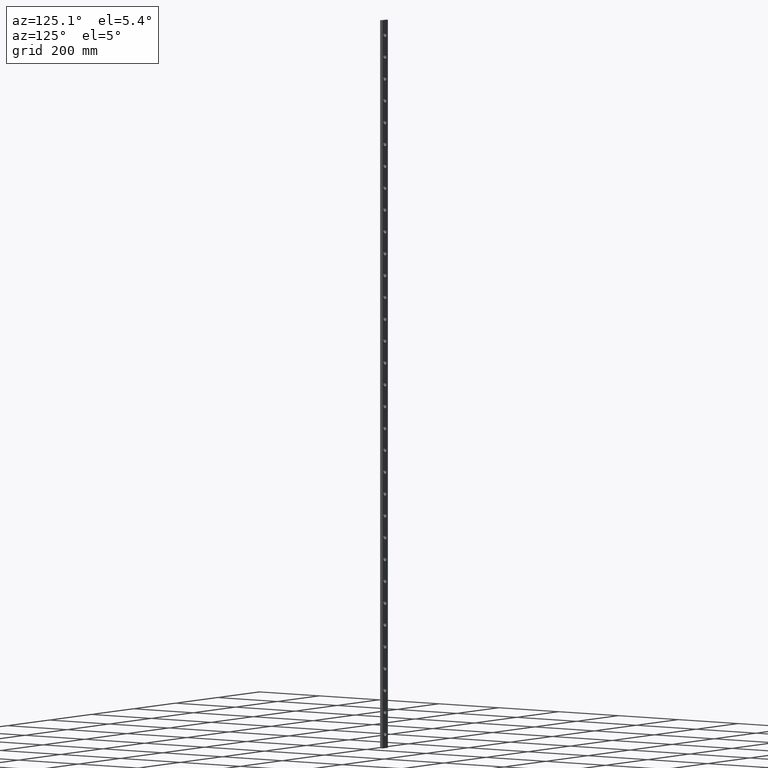
[diagram: clean part render]
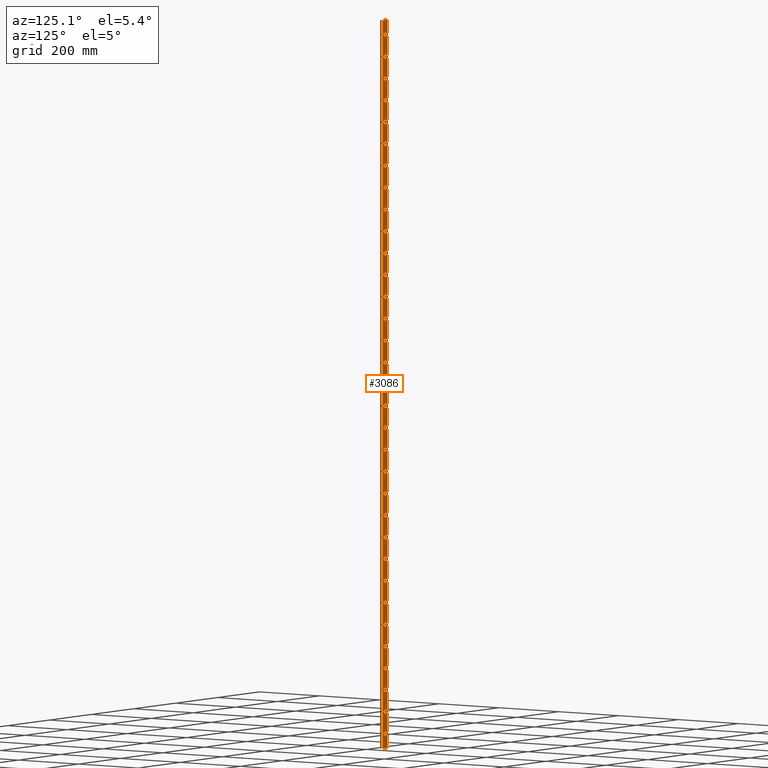
[diagram: same view with one face highlighted and labeled with its STEP entity id]
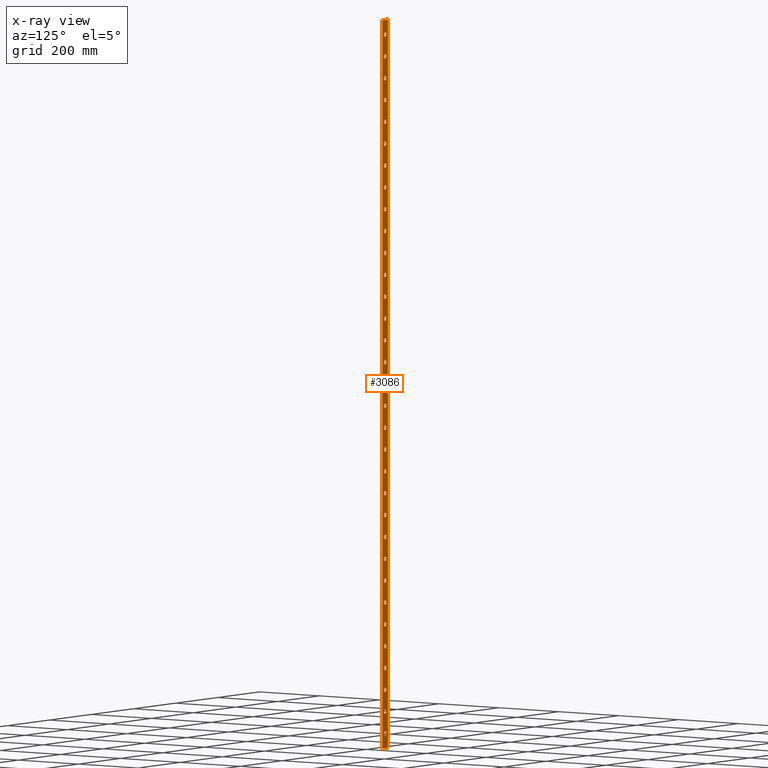
[diagram: x-ray of the same camera — body ghosted, the highlighted face saturated]
A machine part, auxiliary view. The second image highlights one B-rep face of the part: STEP entity #3086.
The next image is the same camera in x-ray: the body ghosted, the highlighted face saturated — about 0% of this face is hidden behind the body in this view.
In plain terms, the highlighted planar face has unit normal (-0, 1, 0).
Its self-contained STEP definition (entity closure, byte-faithful):
#38 = AXIS2_PLACEMENT_3D ( 'NONE', #934, #4099, #1985 ) ;
#85 = ORIENTED_EDGE ( 'NONE', *, *, #7486, .F. ) ;
#91 = CIRCLE ( 'NONE', #7101, 6.499999999999839240 ) ;
#181 = CARTESIAN_POINT ( 'NONE',  ( 0.000000000000000000, 4.000000000000000000, -533.4999999999998863 ) ) ;
#225 = EDGE_LOOP ( 'NONE', ( #13113 ) ) ;
#255 = CARTESIAN_POINT ( 'NONE',  ( 0.000000000000000000, 4.000000000000000000, -959.9999999999997726 ) ) ;
#257 = EDGE_LOOP ( 'NONE', ( #11710 ) ) ;
#326 = CARTESIAN_POINT ( 'NONE',  ( 0.000000000000000000, 4.000000000000000000, 726.5000000000002274 ) ) ;
#340 = FACE_BOUND ( 'NONE', #225, .T. ) ;
#350 = DIRECTION ( 'NONE',  ( 0.000000000000000000, 0.000000000000000000, 1.000000000000000000 ) ) ;
#354 = CIRCLE ( 'NONE', #9253, 6.500000000000061284 ) ;
#378 = CARTESIAN_POINT ( 'NONE',  ( 0.000000000000000000, 4.000000000000000000, 6.500000000000107470 ) ) ;
#425 = CARTESIAN_POINT ( 'NONE',  ( 0.000000000000000000, 4.000000000000000000, 66.50000000000042633 ) ) ;
#440 = DIRECTION ( 'NONE',  ( 0.000000000000000000, 0.000000000000000000, 1.000000000000000000 ) ) ;
#502 = CARTESIAN_POINT ( 'NONE',  ( 0.000000000000000000, 4.000000000000000000, -599.9999999999998863 ) ) ;
#521 = FACE_BOUND ( 'NONE', #8348, .T. ) ;
#524 = EDGE_CURVE ( 'NONE', #6384, #6384, #4443, .T. ) ;
#610 = CIRCLE ( 'NONE', #8215, 6.499999999999895195 ) ;
#612 = VERTEX_POINT ( 'NONE', #378 ) ;
#627 = CIRCLE ( 'NONE', #6201, 6.499999999999895195 ) ;
#649 = DIRECTION ( 'NONE',  ( 0.000000000000000000, 1.000000000000000000, 0.000000000000000000 ) ) ;
#703 = DIRECTION ( 'NONE',  ( 0.000000000000000000, 1.000000000000000000, 0.000000000000000000 ) ) ;
#738 = EDGE_CURVE ( 'NONE', #4859, #4859, #13724, .T. ) ;
#870 = FACE_BOUND ( 'NONE', #3345, .T. ) ;
#934 = CARTESIAN_POINT ( 'NONE',  ( 0.000000000000000000, 4.000000000000000000, -179.9999999999997158 ) ) ;
#942 = VERTEX_POINT ( 'NONE', #6702 ) ;
#966 = ORIENTED_EDGE ( 'NONE', *, *, #13802, .F. ) ;
#978 = DIRECTION ( 'NONE',  ( 0.000000000000000000, 1.000000000000000000, 0.000000000000000000 ) ) ;
#1024 = FACE_BOUND ( 'NONE', #14113, .T. ) ;
#1099 = EDGE_LOOP ( 'NONE', ( #12954 ) ) ;
#1100 = DIRECTION ( 'NONE',  ( 0.000000000000000000, 1.000000000000000000, 0.000000000000000000 ) ) ;
#1106 = VERTEX_POINT ( 'NONE', #3851 ) ;
#1115 = DIRECTION ( 'NONE',  ( 0.000000000000000000, 1.000000000000000000, 0.000000000000000000 ) ) ;
#1138 = CARTESIAN_POINT ( 'NONE',  ( -12.50000000000006750, 4.000000000000000000, 1000.000000000000227 ) ) ;
#1143 = ORIENTED_EDGE ( 'NONE', *, *, #2172, .F. ) ;
#1149 = DIRECTION ( 'NONE',  ( 0.000000000000000000, 1.000000000000000000, 0.000000000000000000 ) ) ;
#1166 = DIRECTION ( 'NONE',  ( 0.000000000000000000, 1.000000000000000000, 0.000000000000000000 ) ) ;
#1184 = FACE_BOUND ( 'NONE', #1099, .T. ) ;
#1201 = CARTESIAN_POINT ( 'NONE',  ( 0.000000000000000000, 4.000000000000000000, -479.9999999999997726 ) ) ;
#1219 = EDGE_CURVE ( 'NONE', #6054, #6054, #9888, .T. ) ;
#1229 = CARTESIAN_POINT ( 'NONE',  ( 0.000000000000000000, 4.000000000000000000, 240.0000000000002274 ) ) ;
#1255 = CARTESIAN_POINT ( 'NONE',  ( 0.000000000000000000, 4.000000000000000000, 720.0000000000002274 ) ) ;
#1261 = VERTEX_POINT ( 'NONE', #13556 ) ;
#1343 = CARTESIAN_POINT ( 'NONE',  ( 0.000000000000000000, 4.000000000000000000, 660.0000000000001137 ) ) ;
#1389 = CARTESIAN_POINT ( 'NONE',  ( 0.000000000000000000, 4.000000000000000000, -419.9999999999997158 ) ) ;
#1454 = EDGE_CURVE ( 'NONE', #10954, #10954, #2080, .T. ) ;
#1455 = VERTEX_POINT ( 'NONE', #9959 ) ;
#1494 = ORIENTED_EDGE ( 'NONE', *, *, #11256, .F. ) ;
#1508 = AXIS2_PLACEMENT_3D ( 'NONE', #13974, #4282, #11206 ) ;
#1562 = LINE ( 'NONE', #7727, #9710 ) ;
#1592 = CARTESIAN_POINT ( 'NONE',  ( 0.000000000000000000, 4.000000000000000000, -719.9999999999997726 ) ) ;
#1595 = EDGE_CURVE ( 'NONE', #6448, #13109, #7204, .T. ) ;
#1608 = DIRECTION ( 'NONE',  ( 0.000000000000000000, 1.000000000000000000, 0.000000000000000000 ) ) ;
#1626 = CARTESIAN_POINT ( 'NONE',  ( 0.000000000000000000, 4.000000000000000000, 366.5000000000003979 ) ) ;
#1658 = CIRCLE ( 'NONE', #12400, 6.499999999999895195 ) ;
#1733 = CIRCLE ( 'NONE', #5662, 6.499999999999950262 ) ;
#1868 = DIRECTION ( 'NONE',  ( 0.000000000000000000, 0.000000000000000000, 1.000000000000000000 ) ) ;
#1885 = CARTESIAN_POINT ( 'NONE',  ( 0.000000000000000000, 4.000000000000000000, 480.0000000000002274 ) ) ;
#1894 = EDGE_CURVE ( 'NONE', #942, #942, #10409, .T. ) ;
#1920 = EDGE_LOOP ( 'NONE', ( #13104 ) ) ;
#1979 = ORIENTED_EDGE ( 'NONE', *, *, #1595, .T. ) ;
#1985 = DIRECTION ( 'NONE',  ( 0.000000000000000000, 0.000000000000000000, 1.000000000000000000 ) ) ;
#2000 = EDGE_LOOP ( 'NONE', ( #2219 ) ) ;
#2020 = VERTEX_POINT ( 'NONE', #6023 ) ;
#2080 = CIRCLE ( 'NONE', #6566, 6.500000000000061284 ) ;
#2098 = EDGE_CURVE ( 'NONE', #7272, #7272, #2599, .T. ) ;
#2119 = ORIENTED_EDGE ( 'NONE', *, *, #11844, .F. ) ;
#2154 = CARTESIAN_POINT ( 'NONE',  ( -12.50000000000006750, 4.000000000000000000, 1000.000000000000227 ) ) ;
#2172 = EDGE_CURVE ( 'NONE', #12890, #12890, #12303, .T. ) ;
#2219 = ORIENTED_EDGE ( 'NONE', *, *, #12562, .F. ) ;
#2235 = AXIS2_PLACEMENT_3D ( 'NONE', #3801, #11440, #3707 ) ;
#2270 = ORIENTED_EDGE ( 'NONE', *, *, #10347, .F. ) ;
#2276 = EDGE_CURVE ( 'NONE', #13067, #6448, #1562, .T. ) ;
#2282 = DIRECTION ( 'NONE',  ( 0.000000000000000000, 0.000000000000000000, 1.000000000000000000 ) ) ;
#2290 = VERTEX_POINT ( 'NONE', #11436 ) ;
#2336 = AXIS2_PLACEMENT_3D ( 'NONE', #5752, #13515, #440 ) ;
#2349 = EDGE_LOOP ( 'NONE', ( #12436 ) ) ;
#2367 = DIRECTION ( 'NONE',  ( 0.000000000000000000, 1.000000000000000000, 0.000000000000000000 ) ) ;
#2466 = DIRECTION ( 'NONE',  ( 0.000000000000000000, 0.000000000000000000, 1.000000000000000000 ) ) ;
#2469 = VERTEX_POINT ( 'NONE', #8256 ) ;
#2500 = DIRECTION ( 'NONE',  ( 0.000000000000000000, 1.000000000000000000, 0.000000000000000000 ) ) ;
#2517 = EDGE_LOOP ( 'NONE', ( #2270 ) ) ;
#2575 = EDGE_LOOP ( 'NONE', ( #4084 ) ) ;
#2579 = FACE_BOUND ( 'NONE', #5027, .T. ) ;
#2597 = DIRECTION ( 'NONE',  ( 0.000000000000000000, 1.000000000000000000, 0.000000000000000000 ) ) ;
#2599 = CIRCLE ( 'NONE', #11636, 6.500000000000061284 ) ;
#2671 = VERTEX_POINT ( 'NONE', #12340 ) ;
#2672 = EDGE_LOOP ( 'NONE', ( #1494 ) ) ;
#2690 = CARTESIAN_POINT ( 'NONE',  ( 0.000000000000000000, 4.000000000000000000, -713.5000000000000000 ) ) ;
#2699 = DIRECTION ( 'NONE',  ( 0.000000000000000000, 1.000000000000000000, 0.000000000000000000 ) ) ;
#2739 = CARTESIAN_POINT ( 'NONE',  ( 0.000000000000000000, 4.000000000000000000, -953.4999999999997726 ) ) ;
#2759 = CARTESIAN_POINT ( 'NONE',  ( 0.000000000000000000, 4.000000000000000000, -659.9999999999996589 ) ) ;
#2779 = CIRCLE ( 'NONE', #10147, 6.499999999999895195 ) ;
#2785 = CARTESIAN_POINT ( 'NONE',  ( 0.000000000000000000, 4.000000000000000000, 426.5000000000000000 ) ) ;
#2803 = ORIENTED_EDGE ( 'NONE', *, *, #738, .F. ) ;
#2819 = AXIS2_PLACEMENT_3D ( 'NONE', #2759, #703, #8229 ) ;
#2922 = FACE_BOUND ( 'NONE', #257, .T. ) ;
#2992 = VERTEX_POINT ( 'NONE', #13508 ) ;
#3026 = DIRECTION ( 'NONE',  ( -0.000000000000000000, 1.000000000000000000, 0.000000000000000000 ) ) ;
#3034 = CARTESIAN_POINT ( 'NONE',  ( 0.000000000000000000, 4.000000000000000000, 840.0000000000002274 ) ) ;
#3076 = ORIENTED_EDGE ( 'NONE', *, *, #10890, .F. ) ;
#3086 = ADVANCED_FACE ( 'NONE', ( #5423, #9192, #9013, #1024, #7507, #6151, #13133, #7354, #3378, #8025, #3566, #12283, #2922, #9371, #2579, #3743, #6305, #870, #4577, #13853, #12660, #4398, #6480, #6992, #3224, #10879, #340, #7182, #1184, #521, #5106, #12463, #9524, #4763 ), #12852, .T. ) ;
#3194 = DIRECTION ( 'NONE',  ( 0.000000000000000000, 1.000000000000000000, 0.000000000000000000 ) ) ;
#3211 = EDGE_CURVE ( 'NONE', #2671, #2671, #1733, .T. ) ;
#3216 = EDGE_LOOP ( 'NONE', ( #12476 ) ) ;
#3224 = FACE_BOUND ( 'NONE', #2672, .T. ) ;
#3256 = ORIENTED_EDGE ( 'NONE', *, *, #3211, .F. ) ;
#3267 = EDGE_LOOP ( 'NONE', ( #3341 ) ) ;
#3281 = VERTEX_POINT ( 'NONE', #1626 ) ;
#3298 = VERTEX_POINT ( 'NONE', #12241 ) ;
#3341 = ORIENTED_EDGE ( 'NONE', *, *, #2098, .F. ) ;
#3345 = EDGE_LOOP ( 'NONE', ( #7110 ) ) ;
#3354 = EDGE_LOOP ( 'NONE', ( #1979, #8190, #11369, #9646 ) ) ;
#3378 = FACE_BOUND ( 'NONE', #7747, .T. ) ;
#3381 = DIRECTION ( 'NONE',  ( 0.000000000000000000, 1.000000000000000000, 0.000000000000000000 ) ) ;
#3508 = CIRCLE ( 'NONE', #38, 6.499999999999895195 ) ;
#3566 = FACE_BOUND ( 'NONE', #7368, .T. ) ;
#3586 = EDGE_LOOP ( 'NONE', ( #9822 ) ) ;
#3588 = AXIS2_PLACEMENT_3D ( 'NONE', #10084, #4924, #10059 ) ;
#3707 = DIRECTION ( 'NONE',  ( 0.000000000000000000, 0.000000000000000000, 1.000000000000000000 ) ) ;
#3743 = FACE_BOUND ( 'NONE', #4923, .T. ) ;
#3801 = CARTESIAN_POINT ( 'NONE',  ( 0.000000000000000000, 4.000000000000000000, 780.0000000000002274 ) ) ;
#3822 = ORIENTED_EDGE ( 'NONE', *, *, #4159, .F. ) ;
#3830 = ORIENTED_EDGE ( 'NONE', *, *, #10239, .F. ) ;
#3851 = CARTESIAN_POINT ( 'NONE',  ( 0.000000000000000000, 4.000000000000000000, -773.5000000000001137 ) ) ;
#3913 = CARTESIAN_POINT ( 'NONE',  ( 0.000000000000000000, 4.000000000000000000, 180.0000000000001705 ) ) ;
#3956 = DIRECTION ( 'NONE',  ( 0.000000000000000000, 0.000000000000000000, 1.000000000000000000 ) ) ;
#3988 = VERTEX_POINT ( 'NONE', #9225 ) ;
#4084 = ORIENTED_EDGE ( 'NONE', *, *, #12133, .F. ) ;
#4099 = DIRECTION ( 'NONE',  ( 0.000000000000000000, 1.000000000000000000, 0.000000000000000000 ) ) ;
#4159 = EDGE_CURVE ( 'NONE', #5504, #5504, #6509, .T. ) ;
#4238 = ORIENTED_EDGE ( 'NONE', *, *, #11736, .F. ) ;
#4282 = DIRECTION ( 'NONE',  ( 0.000000000000000000, 1.000000000000000000, 0.000000000000000000 ) ) ;
#4303 = EDGE_CURVE ( 'NONE', #1455, #1455, #11465, .T. ) ;
#4317 = VERTEX_POINT ( 'NONE', #4945 ) ;
#4326 = CIRCLE ( 'NONE', #4809, 6.500000000000144773 ) ;
#4359 = AXIS2_PLACEMENT_3D ( 'NONE', #1343, #8079, #4719 ) ;
#4391 = CARTESIAN_POINT ( 'NONE',  ( 0.000000000000000000, 4.000000000000000000, 420.0000000000001705 ) ) ;
#4398 = FACE_BOUND ( 'NONE', #3216, .T. ) ;
#4437 = CIRCLE ( 'NONE', #5214, 6.499999999999950262 ) ;
#4440 = DIRECTION ( 'NONE',  ( 0.000000000000000000, 1.000000000000000000, 0.000000000000000000 ) ) ;
#4443 = CIRCLE ( 'NONE', #12813, 6.500000000000061284 ) ;
#4480 = VERTEX_POINT ( 'NONE', #9316 ) ;
#4501 = DIRECTION ( 'NONE',  ( 0.000000000000000000, 1.000000000000000000, 0.000000000000000000 ) ) ;
#4515 = AXIS2_PLACEMENT_3D ( 'NONE', #11803, #1115, #9757 ) ;
#4577 = FACE_BOUND ( 'NONE', #1920, .T. ) ;
#4596 = DIRECTION ( 'NONE',  ( 0.000000000000000000, 1.000000000000000000, 0.000000000000000000 ) ) ;
#4702 = CARTESIAN_POINT ( 'NONE',  ( 0.000000000000000000, 4.000000000000000000, 246.5000000000001705 ) ) ;
#4719 = DIRECTION ( 'NONE',  ( 0.000000000000000000, 0.000000000000000000, 1.000000000000000000 ) ) ;
#4763 = FACE_BOUND ( 'NONE', #2575, .T. ) ;
#4809 = AXIS2_PLACEMENT_3D ( 'NONE', #5202, #11715, #1868 ) ;
#4830 = EDGE_CURVE ( 'NONE', #10618, #10618, #4437, .T. ) ;
#4859 = VERTEX_POINT ( 'NONE', #5743 ) ;
#4894 = CIRCLE ( 'NONE', #11486, 6.499999999999728217 ) ;
#4923 = EDGE_LOOP ( 'NONE', ( #4238 ) ) ;
#4924 = DIRECTION ( 'NONE',  ( 0.000000000000000000, 1.000000000000000000, 0.000000000000000000 ) ) ;
#4934 = EDGE_LOOP ( 'NONE', ( #6784 ) ) ;
#4937 = CIRCLE ( 'NONE', #2819, 6.499999999999728217 ) ;
#4945 = CARTESIAN_POINT ( 'NONE',  ( 0.000000000000000000, 4.000000000000000000, -893.4999999999997726 ) ) ;
#5000 = DIRECTION ( 'NONE',  ( 0.000000000000000000, 0.000000000000000000, 1.000000000000000000 ) ) ;
#5027 = EDGE_LOOP ( 'NONE', ( #10312 ) ) ;
#5106 = FACE_BOUND ( 'NONE', #6388, .T. ) ;
#5154 = EDGE_LOOP ( 'NONE', ( #9354 ) ) ;
#5202 = CARTESIAN_POINT ( 'NONE',  ( 0.000000000000000000, 4.000000000000000000, 60.00000000000027711 ) ) ;
#5214 = AXIS2_PLACEMENT_3D ( 'NONE', #502, #13719, #8131 ) ;
#5224 = CARTESIAN_POINT ( 'NONE',  ( 12.49999999999993072, 4.000000000000000000, -1000.000000000000227 ) ) ;
#5251 = AXIS2_PLACEMENT_3D ( 'NONE', #255, #7889, #8958 ) ;
#5321 = ORIENTED_EDGE ( 'NONE', *, *, #11217, .F. ) ;
#5423 = FACE_BOUND ( 'NONE', #2517, .T. ) ;
#5456 = DIRECTION ( 'NONE',  ( 0.000000000000000000, 0.000000000000000000, 1.000000000000000000 ) ) ;
#5493 = VERTEX_POINT ( 'NONE', #2739 ) ;
#5504 = VERTEX_POINT ( 'NONE', #181 ) ;
#5516 = CIRCLE ( 'NONE', #5251, 6.499999999999950262 ) ;
#5555 = EDGE_LOOP ( 'NONE', ( #11601 ) ) ;
#5660 = EDGE_CURVE ( 'NONE', #11692, #11692, #9546, .T. ) ;
#5662 = AXIS2_PLACEMENT_3D ( 'NONE', #13572, #4501, #10180 ) ;
#5689 = CARTESIAN_POINT ( 'NONE',  ( -12.49999999999993072, 4.000000000000000000, -1000.000000000000227 ) ) ;
#5743 = CARTESIAN_POINT ( 'NONE',  ( 0.000000000000000000, 4.000000000000000000, 126.5000000000003553 ) ) ;
#5752 = CARTESIAN_POINT ( 'NONE',  ( 0.000000000000000000, 4.000000000000000000, -359.9999999999996589 ) ) ;
#5760 = DIRECTION ( 'NONE',  ( 0.000000000000000000, 0.000000000000000000, 1.000000000000000000 ) ) ;
#5793 = CARTESIAN_POINT ( 'NONE',  ( 0.000000000000000000, 4.000000000000000000, 966.5000000000001137 ) ) ;
#5980 = EDGE_CURVE ( 'NONE', #612, #612, #10404, .T. ) ;
#6023 = CARTESIAN_POINT ( 'NONE',  ( 12.49999999999993072, 4.000000000000000000, -1000.000000000000227 ) ) ;
#6054 = VERTEX_POINT ( 'NONE', #13256 ) ;
#6073 = EDGE_CURVE ( 'NONE', #13927, #13927, #2779, .T. ) ;
#6151 = FACE_BOUND ( 'NONE', #3586, .T. ) ;
#6201 = AXIS2_PLACEMENT_3D ( 'NONE', #1201, #3194, #7592 ) ;
#6208 = EDGE_CURVE ( 'NONE', #12734, #12734, #354, .T. ) ;
#6305 = FACE_OUTER_BOUND ( 'NONE', #3354, .T. ) ;
#6384 = VERTEX_POINT ( 'NONE', #10011 ) ;
#6388 = EDGE_LOOP ( 'NONE', ( #9556 ) ) ;
#6448 = VERTEX_POINT ( 'NONE', #1138 ) ;
#6480 = FACE_BOUND ( 'NONE', #5154, .T. ) ;
#6496 = AXIS2_PLACEMENT_3D ( 'NONE', #1229, #4596, #7761 ) ;
#6509 = CIRCLE ( 'NONE', #1508, 6.499999999999950262 ) ;
#6514 = EDGE_CURVE ( 'NONE', #13109, #2020, #11612, .T. ) ;
#6566 = AXIS2_PLACEMENT_3D ( 'NONE', #9698, #1100, #11923 ) ;
#6628 = EDGE_LOOP ( 'NONE', ( #7081 ) ) ;
#6646 = VECTOR ( 'NONE', #9826, 1000.000000000000000 ) ;
#6680 = AXIS2_PLACEMENT_3D ( 'NONE', #11788, #3026, #13962 ) ;
#6702 = CARTESIAN_POINT ( 'NONE',  ( 0.000000000000000000, 4.000000000000000000, 666.5000000000002274 ) ) ;
#6717 = CARTESIAN_POINT ( 'NONE',  ( 0.000000000000000000, 4.000000000000000000, -299.9999999999998295 ) ) ;
#6721 = DIRECTION ( 'NONE',  ( -6.765421556309546436E-17, -0.000000000000000000, 1.000000000000000000 ) ) ;
#6769 = DIRECTION ( 'NONE',  ( 0.000000000000000000, 0.000000000000000000, 1.000000000000000000 ) ) ;
#6781 = CIRCLE ( 'NONE', #2336, 6.499999999999895195 ) ;
#6784 = ORIENTED_EDGE ( 'NONE', *, *, #10202, .F. ) ;
#6982 = CARTESIAN_POINT ( 'NONE',  ( 0.000000000000000000, 4.000000000000000000, -779.9999999999997726 ) ) ;
#6992 = FACE_BOUND ( 'NONE', #13469, .T. ) ;
#7012 = DIRECTION ( 'NONE',  ( 0.000000000000000000, 1.000000000000000000, 0.000000000000000000 ) ) ;
#7081 = ORIENTED_EDGE ( 'NONE', *, *, #11046, .F. ) ;
#7095 = ORIENTED_EDGE ( 'NONE', *, *, #5980, .F. ) ;
#7096 = DIRECTION ( 'NONE',  ( 0.000000000000000000, 0.000000000000000000, 1.000000000000000000 ) ) ;
#7101 = AXIS2_PLACEMENT_3D ( 'NONE', #4391, #4440, #2282 ) ;
#7110 = ORIENTED_EDGE ( 'NONE', *, *, #5660, .F. ) ;
#7182 = FACE_BOUND ( 'NONE', #6628, .T. ) ;
#7204 = LINE ( 'NONE', #2154, #8865 ) ;
#7216 = DIRECTION ( 'NONE',  ( 0.000000000000000000, 0.000000000000000000, 1.000000000000000000 ) ) ;
#7265 = EDGE_LOOP ( 'NONE', ( #85 ) ) ;
#7272 = VERTEX_POINT ( 'NONE', #326 ) ;
#7354 = FACE_BOUND ( 'NONE', #4934, .T. ) ;
#7368 = EDGE_LOOP ( 'NONE', ( #2119 ) ) ;
#7403 = AXIS2_PLACEMENT_3D ( 'NONE', #8161, #2597, #9232 ) ;
#7405 = VERTEX_POINT ( 'NONE', #425 ) ;
#7418 = VERTEX_POINT ( 'NONE', #2785 ) ;
#7486 = EDGE_CURVE ( 'NONE', #3298, #3298, #4937, .T. ) ;
#7491 = EDGE_LOOP ( 'NONE', ( #3076 ) ) ;
#7507 = FACE_BOUND ( 'NONE', #2000, .T. ) ;
#7548 = EDGE_CURVE ( 'NONE', #2020, #13067, #12462, .T. ) ;
#7579 = ORIENTED_EDGE ( 'NONE', *, *, #1219, .F. ) ;
#7592 = DIRECTION ( 'NONE',  ( 0.000000000000000000, 0.000000000000000000, 1.000000000000000000 ) ) ;
#7628 = AXIS2_PLACEMENT_3D ( 'NONE', #8650, #8691, #11860 ) ;
#7727 = CARTESIAN_POINT ( 'NONE',  ( -12.50000000000006750, 4.000000000000000000, 1000.000000000000227 ) ) ;
#7747 = EDGE_LOOP ( 'NONE', ( #2803 ) ) ;
#7761 = DIRECTION ( 'NONE',  ( 0.000000000000000000, 0.000000000000000000, 1.000000000000000000 ) ) ;
#7889 = DIRECTION ( 'NONE',  ( 0.000000000000000000, 1.000000000000000000, 0.000000000000000000 ) ) ;
#7905 = CARTESIAN_POINT ( 'NONE',  ( 0.000000000000000000, 4.000000000000000000, 606.5000000000002274 ) ) ;
#7935 = CIRCLE ( 'NONE', #14063, 6.499999999999728217 ) ;
#8018 = AXIS2_PLACEMENT_3D ( 'NONE', #14179, #12059, #5456 ) ;
#8025 = FACE_BOUND ( 'NONE', #8221, .T. ) ;
#8079 = DIRECTION ( 'NONE',  ( 0.000000000000000000, 1.000000000000000000, 0.000000000000000000 ) ) ;
#8131 = DIRECTION ( 'NONE',  ( 0.000000000000000000, 0.000000000000000000, 1.000000000000000000 ) ) ;
#8161 = CARTESIAN_POINT ( 'NONE',  ( 0.000000000000000000, 4.000000000000000000, 300.0000000000002842 ) ) ;
#8190 = ORIENTED_EDGE ( 'NONE', *, *, #6514, .T. ) ;
#8215 = AXIS2_PLACEMENT_3D ( 'NONE', #1389, #2500, #5760 ) ;
#8221 = EDGE_LOOP ( 'NONE', ( #1143 ) ) ;
#8229 = DIRECTION ( 'NONE',  ( 0.000000000000000000, 0.000000000000000000, 1.000000000000000000 ) ) ;
#8256 = CARTESIAN_POINT ( 'NONE',  ( 0.000000000000000000, 4.000000000000000000, -473.4999999999998863 ) ) ;
#8267 = DIRECTION ( 'NONE',  ( 0.000000000000000000, 1.000000000000000000, 0.000000000000000000 ) ) ;
#8348 = EDGE_LOOP ( 'NONE', ( #966 ) ) ;
#8375 = EDGE_CURVE ( 'NONE', #9277, #9277, #12446, .T. ) ;
#8650 = CARTESIAN_POINT ( 'NONE',  ( 0.000000000000000000, 4.000000000000000000, -899.9999999999996589 ) ) ;
#8691 = DIRECTION ( 'NONE',  ( 0.000000000000000000, 1.000000000000000000, 0.000000000000000000 ) ) ;
#8731 = EDGE_CURVE ( 'NONE', #1261, #1261, #6781, .T. ) ;
#8865 = VECTOR ( 'NONE', #13164, 1000.000000000000000 ) ;
#8880 = CARTESIAN_POINT ( 'NONE',  ( 0.000000000000000000, 4.000000000000000000, -293.4999999999999432 ) ) ;
#8908 = CARTESIAN_POINT ( 'NONE',  ( 0.000000000000000000, 4.000000000000000000, -119.9999999999998863 ) ) ;
#8958 = DIRECTION ( 'NONE',  ( 0.000000000000000000, 0.000000000000000000, 1.000000000000000000 ) ) ;
#8999 = DIRECTION ( 'NONE',  ( 0.000000000000000000, 1.000000000000000000, 0.000000000000000000 ) ) ;
#9013 = FACE_BOUND ( 'NONE', #7265, .T. ) ;
#9152 = DIRECTION ( 'NONE',  ( 0.000000000000000000, 0.000000000000000000, 1.000000000000000000 ) ) ;
#9192 = FACE_BOUND ( 'NONE', #2349, .T. ) ;
#9225 = CARTESIAN_POINT ( 'NONE',  ( 0.000000000000000000, 4.000000000000000000, 186.5000000000001137 ) ) ;
#9232 = DIRECTION ( 'NONE',  ( 0.000000000000000000, 0.000000000000000000, 1.000000000000000000 ) ) ;
#9253 = AXIS2_PLACEMENT_3D ( 'NONE', #12566, #649, #5000 ) ;
#9269 = ORIENTED_EDGE ( 'NONE', *, *, #1894, .F. ) ;
#9277 = VERTEX_POINT ( 'NONE', #11384 ) ;
#9316 = CARTESIAN_POINT ( 'NONE',  ( 0.000000000000000000, 4.000000000000000000, -233.4999999999998863 ) ) ;
#9354 = ORIENTED_EDGE ( 'NONE', *, *, #10475, .F. ) ;
#9371 = FACE_BOUND ( 'NONE', #3267, .T. ) ;
#9524 = FACE_BOUND ( 'NONE', #9640, .T. ) ;
#9531 = EDGE_CURVE ( 'NONE', #1106, #1106, #10664, .T. ) ;
#9546 = CIRCLE ( 'NONE', #10242, 6.499999999999950262 ) ;
#9556 = ORIENTED_EDGE ( 'NONE', *, *, #4830, .F. ) ;
#9640 = EDGE_LOOP ( 'NONE', ( #3256 ) ) ;
#9646 = ORIENTED_EDGE ( 'NONE', *, *, #2276, .T. ) ;
#9698 = CARTESIAN_POINT ( 'NONE',  ( 0.000000000000000000, 4.000000000000000000, 540.0000000000002274 ) ) ;
#9710 = VECTOR ( 'NONE', #6721, 1000.000000000000000 ) ;
#9757 = DIRECTION ( 'NONE',  ( 0.000000000000000000, 0.000000000000000000, 1.000000000000000000 ) ) ;
#9822 = ORIENTED_EDGE ( 'NONE', *, *, #6073, .F. ) ;
#9826 = DIRECTION ( 'NONE',  ( 9.887923813067797973E-17, 0.000000000000000000, -1.000000000000000000 ) ) ;
#9888 = CIRCLE ( 'NONE', #7403, 6.499999999999895195 ) ;
#9959 = CARTESIAN_POINT ( 'NONE',  ( 0.000000000000000000, 4.000000000000000000, 786.5000000000003411 ) ) ;
#10011 = CARTESIAN_POINT ( 'NONE',  ( 0.000000000000000000, 4.000000000000000000, 846.5000000000002274 ) ) ;
#10059 = DIRECTION ( 'NONE',  ( 0.000000000000000000, 0.000000000000000000, 1.000000000000000000 ) ) ;
#10084 = CARTESIAN_POINT ( 'NONE',  ( 0.000000000000000000, 4.000000000000000000, 2.220446049250313081E-13 ) ) ;
#10147 = AXIS2_PLACEMENT_3D ( 'NONE', #6717, #1149, #6769 ) ;
#10180 = DIRECTION ( 'NONE',  ( 0.000000000000000000, 0.000000000000000000, 1.000000000000000000 ) ) ;
#10202 = EDGE_CURVE ( 'NONE', #10291, #10291, #13966, .T. ) ;
#10239 = EDGE_CURVE ( 'NONE', #13218, #13218, #4894, .T. ) ;
#10242 = AXIS2_PLACEMENT_3D ( 'NONE', #13692, #10357, #7096 ) ;
#10262 = AXIS2_PLACEMENT_3D ( 'NONE', #6982, #1608, #9152 ) ;
#10273 = DIRECTION ( 'NONE',  ( 0.000000000000000000, 0.000000000000000000, 1.000000000000000000 ) ) ;
#10291 = VERTEX_POINT ( 'NONE', #11488 ) ;
#10305 = CIRCLE ( 'NONE', #4515, 6.500000000000172307 ) ;
#10312 = ORIENTED_EDGE ( 'NONE', *, *, #524, .F. ) ;
#10314 = CARTESIAN_POINT ( 'NONE',  ( 0.000000000000000000, 4.000000000000000000, -413.4999999999998295 ) ) ;
#10347 = EDGE_CURVE ( 'NONE', #4317, #4317, #12052, .T. ) ;
#10357 = DIRECTION ( 'NONE',  ( 0.000000000000000000, 1.000000000000000000, 0.000000000000000000 ) ) ;
#10404 = CIRCLE ( 'NONE', #3588, 6.499999999999885425 ) ;
#10409 = CIRCLE ( 'NONE', #4359, 6.500000000000061284 ) ;
#10475 = EDGE_CURVE ( 'NONE', #7418, #7418, #91, .T. ) ;
#10618 = VERTEX_POINT ( 'NONE', #13454 ) ;
#10659 = DIRECTION ( 'NONE',  ( 0.000000000000000000, 0.000000000000000000, 1.000000000000000000 ) ) ;
#10664 = CIRCLE ( 'NONE', #10262, 6.499999999999728217 ) ;
#10777 = VERTEX_POINT ( 'NONE', #10314 ) ;
#10879 = FACE_BOUND ( 'NONE', #10924, .T. ) ;
#10890 = EDGE_CURVE ( 'NONE', #2992, #2992, #3508, .T. ) ;
#10894 = AXIS2_PLACEMENT_3D ( 'NONE', #3913, #12707, #13758 ) ;
#10924 = EDGE_LOOP ( 'NONE', ( #7095 ) ) ;
#10954 = VERTEX_POINT ( 'NONE', #12147 ) ;
#10992 = DIRECTION ( 'NONE',  ( 0.000000000000000000, 0.000000000000000000, 1.000000000000000000 ) ) ;
#11046 = EDGE_CURVE ( 'NONE', #4480, #4480, #11166, .T. ) ;
#11053 = DIRECTION ( 'NONE',  ( 0.000000000000000000, 0.000000000000000000, 1.000000000000000000 ) ) ;
#11128 = EDGE_LOOP ( 'NONE', ( #9269 ) ) ;
#11166 = CIRCLE ( 'NONE', #8018, 6.499999999999895195 ) ;
#11206 = DIRECTION ( 'NONE',  ( 0.000000000000000000, 0.000000000000000000, 1.000000000000000000 ) ) ;
#11217 = EDGE_CURVE ( 'NONE', #12014, #12014, #1658, .T. ) ;
#11256 = EDGE_CURVE ( 'NONE', #3988, #3988, #12744, .T. ) ;
#11369 = ORIENTED_EDGE ( 'NONE', *, *, #7548, .T. ) ;
#11384 = CARTESIAN_POINT ( 'NONE',  ( 0.000000000000000000, 4.000000000000000000, -113.4999999999999858 ) ) ;
#11425 = VECTOR ( 'NONE', #12892, 1000.000000000000000 ) ;
#11436 = CARTESIAN_POINT ( 'NONE',  ( 0.000000000000000000, 4.000000000000000000, 906.4999999999998863 ) ) ;
#11440 = DIRECTION ( 'NONE',  ( 0.000000000000000000, 1.000000000000000000, 0.000000000000000000 ) ) ;
#11465 = CIRCLE ( 'NONE', #2235, 6.500000000000061284 ) ;
#11486 = AXIS2_PLACEMENT_3D ( 'NONE', #1592, #2699, #10273 ) ;
#11488 = CARTESIAN_POINT ( 'NONE',  ( 0.000000000000000000, 4.000000000000000000, -53.49999999999995026 ) ) ;
#11601 = ORIENTED_EDGE ( 'NONE', *, *, #4303, .F. ) ;
#11612 = LINE ( 'NONE', #11917, #6646 ) ;
#11636 = AXIS2_PLACEMENT_3D ( 'NONE', #1255, #2367, #11053 ) ;
#11692 = VERTEX_POINT ( 'NONE', #5793 ) ;
#11710 = ORIENTED_EDGE ( 'NONE', *, *, #6208, .F. ) ;
#11715 = DIRECTION ( 'NONE',  ( 0.000000000000000000, 1.000000000000000000, 0.000000000000000000 ) ) ;
#11736 = EDGE_CURVE ( 'NONE', #7405, #7405, #4326, .T. ) ;
#11788 = CARTESIAN_POINT ( 'NONE',  ( 0.000000000000000000, 4.000000000000000000, 0.000000000000000000 ) ) ;
#11803 = CARTESIAN_POINT ( 'NONE',  ( 0.000000000000000000, 4.000000000000000000, 360.0000000000002274 ) ) ;
#11844 = EDGE_CURVE ( 'NONE', #3281, #3281, #10305, .T. ) ;
#11860 = DIRECTION ( 'NONE',  ( 0.000000000000000000, 0.000000000000000000, 1.000000000000000000 ) ) ;
#11911 = EDGE_LOOP ( 'NONE', ( #3830 ) ) ;
#11917 = CARTESIAN_POINT ( 'NONE',  ( 12.49999999999973355, 4.000000000000000000, 1000.000000000000227 ) ) ;
#11923 = DIRECTION ( 'NONE',  ( 0.000000000000000000, 0.000000000000000000, 1.000000000000000000 ) ) ;
#12014 = VERTEX_POINT ( 'NONE', #13700 ) ;
#12052 = CIRCLE ( 'NONE', #7628, 6.499999999999950262 ) ;
#12059 = DIRECTION ( 'NONE',  ( 0.000000000000000000, 1.000000000000000000, 0.000000000000000000 ) ) ;
#12133 = EDGE_CURVE ( 'NONE', #5493, #5493, #5516, .T. ) ;
#12147 = CARTESIAN_POINT ( 'NONE',  ( 0.000000000000000000, 4.000000000000000000, 546.5000000000003411 ) ) ;
#12240 = AXIS2_PLACEMENT_3D ( 'NONE', #13480, #8999, #350 ) ;
#12241 = CARTESIAN_POINT ( 'NONE',  ( 0.000000000000000000, 4.000000000000000000, -653.5000000000000000 ) ) ;
#12283 = FACE_BOUND ( 'NONE', #13334, .T. ) ;
#12303 = CIRCLE ( 'NONE', #6496, 6.499999999999950262 ) ;
#12340 = CARTESIAN_POINT ( 'NONE',  ( 0.000000000000000000, 4.000000000000000000, -833.4999999999996589 ) ) ;
#12400 = AXIS2_PLACEMENT_3D ( 'NONE', #1885, #8267, #3956 ) ;
#12436 = ORIENTED_EDGE ( 'NONE', *, *, #9531, .F. ) ;
#12446 = CIRCLE ( 'NONE', #13026, 6.499999999999895195 ) ;
#12461 = CARTESIAN_POINT ( 'NONE',  ( 0.000000000000000000, 4.000000000000000000, -59.99999999999982947 ) ) ;
#12462 = LINE ( 'NONE', #5224, #11425 ) ;
#12463 = FACE_BOUND ( 'NONE', #11911, .T. ) ;
#12476 = ORIENTED_EDGE ( 'NONE', *, *, #1454, .F. ) ;
#12562 = EDGE_CURVE ( 'NONE', #10777, #10777, #610, .T. ) ;
#12566 = CARTESIAN_POINT ( 'NONE',  ( 0.000000000000000000, 4.000000000000000000, 600.0000000000002274 ) ) ;
#12660 = FACE_BOUND ( 'NONE', #11128, .T. ) ;
#12707 = DIRECTION ( 'NONE',  ( 0.000000000000000000, 1.000000000000000000, 0.000000000000000000 ) ) ;
#12734 = VERTEX_POINT ( 'NONE', #7905 ) ;
#12744 = CIRCLE ( 'NONE', #10894, 6.499999999999950262 ) ;
#12758 = CARTESIAN_POINT ( 'NONE',  ( 0.000000000000000000, 4.000000000000000000, 900.0000000000001137 ) ) ;
#12813 = AXIS2_PLACEMENT_3D ( 'NONE', #3034, #978, #10659 ) ;
#12852 = PLANE ( 'NONE',  #6680 ) ;
#12890 = VERTEX_POINT ( 'NONE', #4702 ) ;
#12892 = DIRECTION ( 'NONE',  ( -1.000000000000000000, 0.000000000000000000, 0.000000000000000000 ) ) ;
#12954 = ORIENTED_EDGE ( 'NONE', *, *, #8731, .F. ) ;
#13026 = AXIS2_PLACEMENT_3D ( 'NONE', #8908, #3381, #10992 ) ;
#13067 = VERTEX_POINT ( 'NONE', #5689 ) ;
#13104 = ORIENTED_EDGE ( 'NONE', *, *, #14121, .F. ) ;
#13109 = VERTEX_POINT ( 'NONE', #13399 ) ;
#13113 = ORIENTED_EDGE ( 'NONE', *, *, #8375, .F. ) ;
#13133 = FACE_BOUND ( 'NONE', #7491, .T. ) ;
#13164 = DIRECTION ( 'NONE',  ( 1.000000000000000000, 0.000000000000000000, 0.000000000000000000 ) ) ;
#13218 = VERTEX_POINT ( 'NONE', #2690 ) ;
#13256 = CARTESIAN_POINT ( 'NONE',  ( 0.000000000000000000, 4.000000000000000000, 306.5000000000001705 ) ) ;
#13334 = EDGE_LOOP ( 'NONE', ( #5321 ) ) ;
#13399 = CARTESIAN_POINT ( 'NONE',  ( 12.49999999999973355, 4.000000000000000000, 1000.000000000000227 ) ) ;
#13454 = CARTESIAN_POINT ( 'NONE',  ( 0.000000000000000000, 4.000000000000000000, -593.4999999999998863 ) ) ;
#13469 = EDGE_LOOP ( 'NONE', ( #7579 ) ) ;
#13480 = CARTESIAN_POINT ( 'NONE',  ( 0.000000000000000000, 4.000000000000000000, 120.0000000000002132 ) ) ;
#13508 = CARTESIAN_POINT ( 'NONE',  ( 0.000000000000000000, 4.000000000000000000, -173.4999999999998295 ) ) ;
#13515 = DIRECTION ( 'NONE',  ( 0.000000000000000000, 1.000000000000000000, 0.000000000000000000 ) ) ;
#13556 = CARTESIAN_POINT ( 'NONE',  ( 0.000000000000000000, 4.000000000000000000, -353.4999999999997726 ) ) ;
#13572 = CARTESIAN_POINT ( 'NONE',  ( 0.000000000000000000, 4.000000000000000000, -839.9999999999996589 ) ) ;
#13692 = CARTESIAN_POINT ( 'NONE',  ( 0.000000000000000000, 4.000000000000000000, 960.0000000000002274 ) ) ;
#13700 = CARTESIAN_POINT ( 'NONE',  ( 0.000000000000000000, 4.000000000000000000, 486.5000000000001137 ) ) ;
#13719 = DIRECTION ( 'NONE',  ( 0.000000000000000000, 1.000000000000000000, 0.000000000000000000 ) ) ;
#13724 = CIRCLE ( 'NONE', #12240, 6.500000000000144773 ) ;
#13758 = DIRECTION ( 'NONE',  ( 0.000000000000000000, 0.000000000000000000, 1.000000000000000000 ) ) ;
#13802 = EDGE_CURVE ( 'NONE', #2469, #2469, #627, .T. ) ;
#13853 = FACE_BOUND ( 'NONE', #5555, .T. ) ;
#13927 = VERTEX_POINT ( 'NONE', #8880 ) ;
#13962 = DIRECTION ( 'NONE',  ( 0.000000000000000000, -0.000000000000000000, 1.000000000000000000 ) ) ;
#13966 = CIRCLE ( 'NONE', #13971, 6.499999999999880984 ) ;
#13971 = AXIS2_PLACEMENT_3D ( 'NONE', #12461, #7012, #7216 ) ;
#13974 = CARTESIAN_POINT ( 'NONE',  ( 0.000000000000000000, 4.000000000000000000, -539.9999999999997726 ) ) ;
#14063 = AXIS2_PLACEMENT_3D ( 'NONE', #12758, #1166, #2466 ) ;
#14113 = EDGE_LOOP ( 'NONE', ( #3822 ) ) ;
#14121 = EDGE_CURVE ( 'NONE', #2290, #2290, #7935, .T. ) ;
#14179 = CARTESIAN_POINT ( 'NONE',  ( 0.000000000000000000, 4.000000000000000000, -239.9999999999997726 ) ) ;